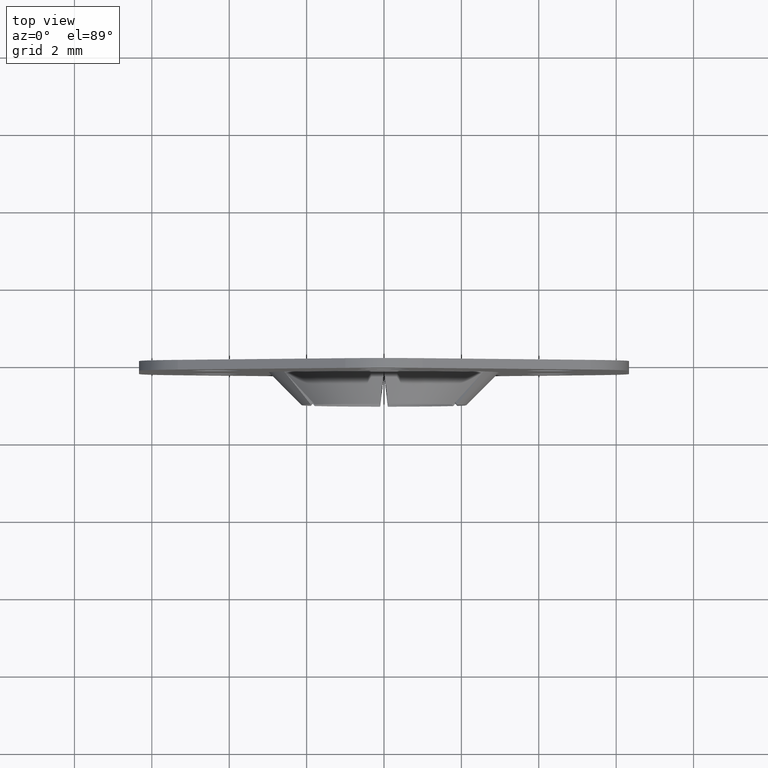
[diagram: clean part render]
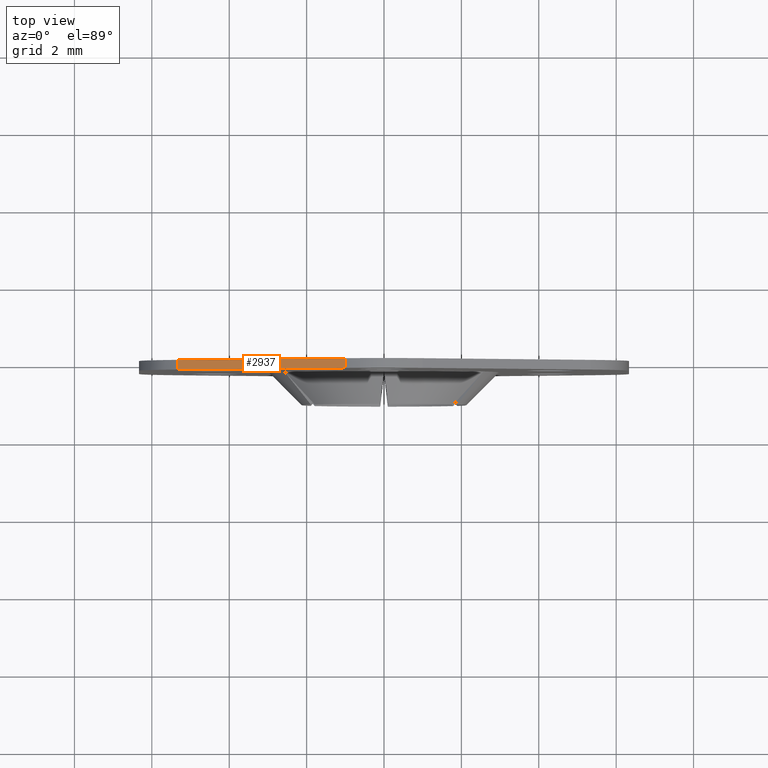
[diagram: same view with one face highlighted and labeled with its STEP entity id]
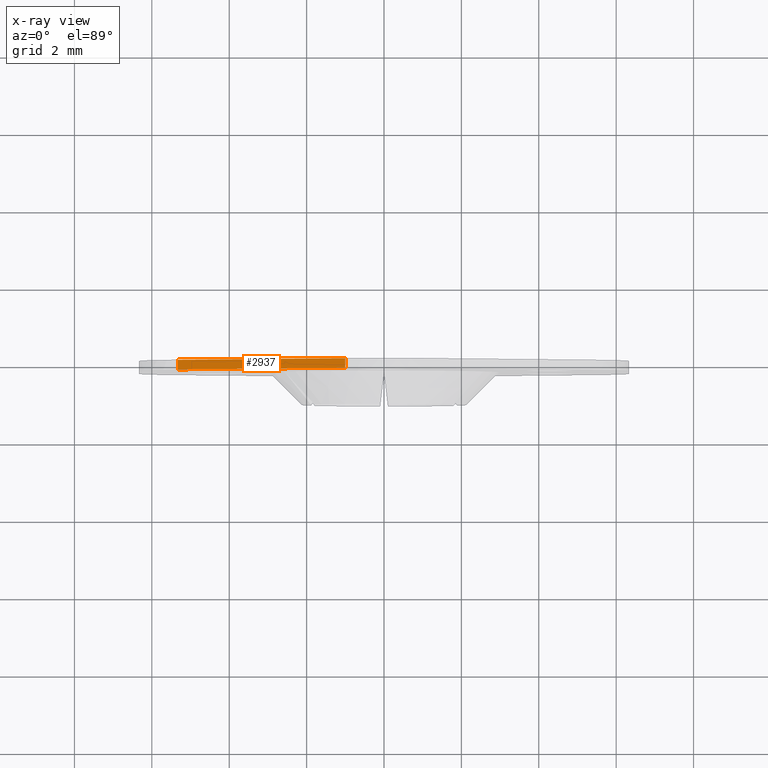
[diagram: x-ray of the same camera — body ghosted, the highlighted face saturated]
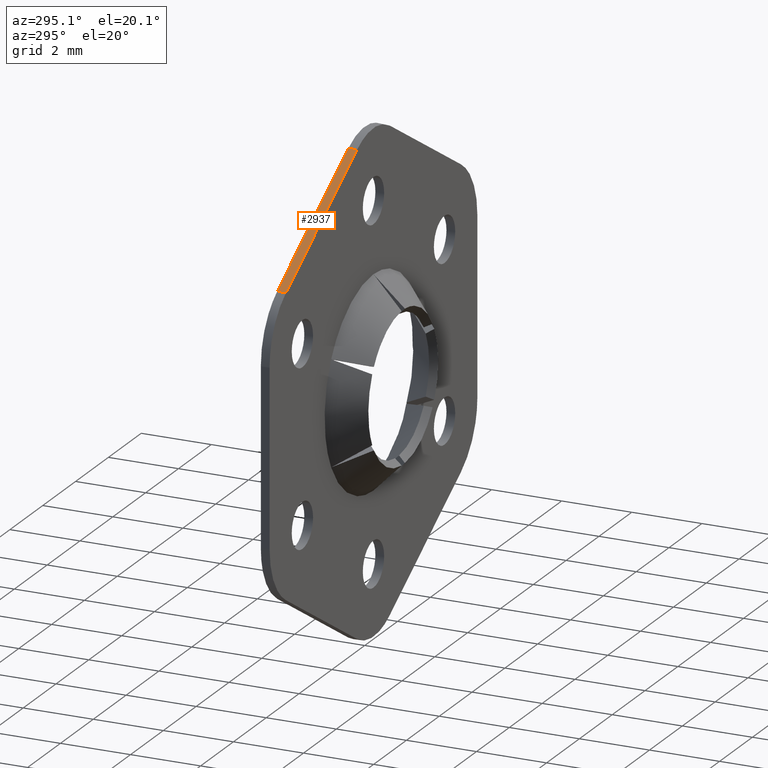
[diagram: same view with one face highlighted and labeled with its STEP entity id]
A machine part, top view. The second image highlights one B-rep face of the part: STEP entity #2937.
The next image is the same camera in x-ray: the body ghosted, the highlighted face saturated — about 0% of this face is hidden behind the body in this view.
A second angle (auxiliary view) of the same face is appended — the face is thin or edge-on in the first view.
In plain terms, the highlighted face is a freeform B-spline surface patch.
Its self-contained STEP definition (entity closure, byte-faithful):
#1930=CARTESIAN_POINT('',(-5.330127018933919,0.0,4.232050807589310));
#1931=VERTEX_POINT('',#1930);
#1944=CARTESIAN_POINT('',(-1.000000000011680,0.0,6.732050807589340));
#1945=VERTEX_POINT('',#1944);
#1946=CARTESIAN_POINT('',(-5.330127018933919,0.0,4.232050807589310));
#1947=CARTESIAN_POINT('',(-1.000000000011680,0.0,6.732050807589340));
#1948=QUASI_UNIFORM_CURVE('',1,(#1946,#1947),.UNSPECIFIED.,.F.,.U.);
#1949=EDGE_CURVE('',#1931,#1945,#1948,.T.);
#2597=CARTESIAN_POINT('',(-5.330127018933919,-0.250000000000064,4.232050807589310));
#2598=VERTEX_POINT('',#2597);
#2612=CARTESIAN_POINT('',(-5.330127018933919,0.0,4.232050807589310));
#2613=CARTESIAN_POINT('',(-5.330127018933919,-0.250000000000064,4.232050807589310));
#2614=QUASI_UNIFORM_CURVE('',1,(#2612,#2613),.UNSPECIFIED.,.F.,.U.);
#2615=EDGE_CURVE('',#1931,#2598,#2614,.T.);
#2635=CARTESIAN_POINT('',(-1.000000000011680,-0.250000000000064,6.732050807589340));
#2636=VERTEX_POINT('',#2635);
#2637=CARTESIAN_POINT('',(-1.000000000011680,-0.250000000000064,6.732050807589340));
#2638=CARTESIAN_POINT('',(-1.000000000011680,0.0,6.732050807589340));
#2639=QUASI_UNIFORM_CURVE('',1,(#2637,#2638),.UNSPECIFIED.,.F.,.U.);
#2640=EDGE_CURVE('',#2636,#1945,#2639,.T.);
#2922=CARTESIAN_POINT('',(-0.783710163809140,-0.262487499515519,6.856925802743856));
#2923=CARTESIAN_POINT('',(-5.546416971279519,-0.262487499515519,4.107175745379571));
#2924=CARTESIAN_POINT('',(-0.783710163809140,0.012487506220977,6.856925802743856));
#2925=CARTESIAN_POINT('',(-5.546416971279519,0.012487506220977,4.107175745379571));
#2926=B_SPLINE_SURFACE_WITH_KNOTS('',1,1,((#2922,#2924),(#2923,#2925)),.UNSPECIFIED.,.F.,.F.,.U.,(2,2),(2,2),(0.0,5.499500114728572),(0.0,0.274975005736496),.UNSPECIFIED.);
#2927=CARTESIAN_POINT('',(-5.330127018933919,-0.250000000000064,4.232050807589310));
#2928=CARTESIAN_POINT('',(-1.000000000011680,-0.250000000000064,6.732050807589340));
#2929=QUASI_UNIFORM_CURVE('',1,(#2927,#2928),.UNSPECIFIED.,.F.,.U.);
#2930=EDGE_CURVE('',#2598,#2636,#2929,.T.);
#2931=ORIENTED_EDGE('',*,*,#2930,.T.);
#2932=ORIENTED_EDGE('',*,*,#2640,.T.);
#2933=ORIENTED_EDGE('',*,*,#1949,.F.);
#2934=ORIENTED_EDGE('',*,*,#2615,.T.);
#2935=EDGE_LOOP('',(#2931,#2932,#2933,#2934));
#2936=FACE_OUTER_BOUND('',#2935,.T.);
#2937=ADVANCED_FACE('',(#2936),#2926,.F.);